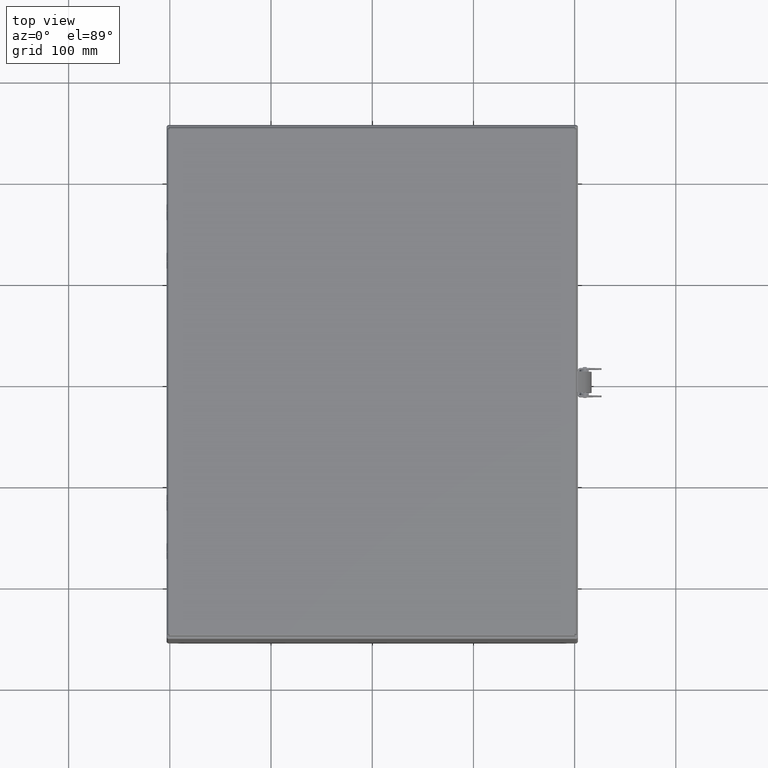
[diagram: clean part render]
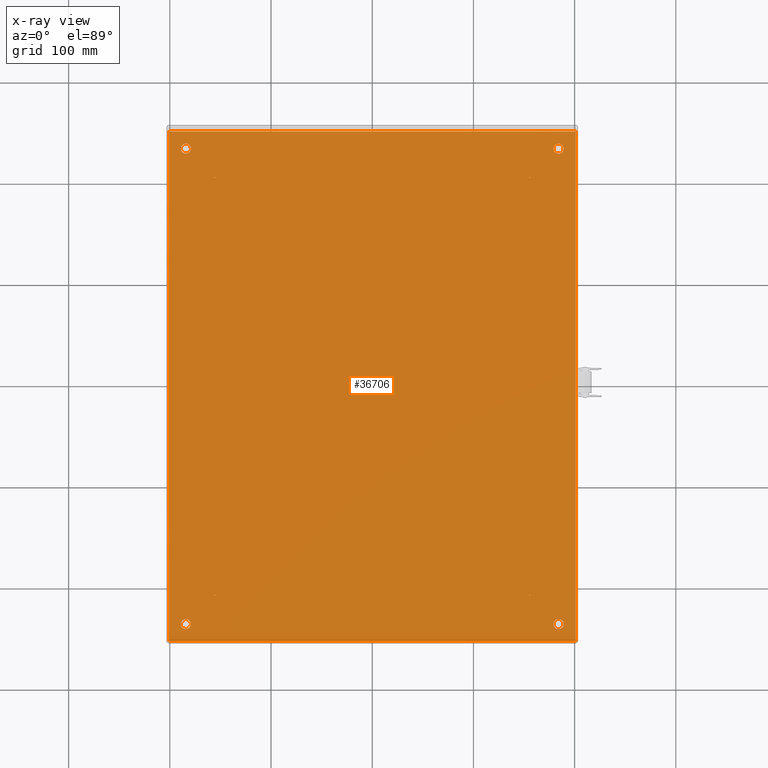
[diagram: x-ray — body ghosted, one internal face saturated and labeled with its STEP entity id]
A machine part, top view, then the same camera in x-ray: the body is ghosted and one INTERNAL B-rep face — a face not visible from any outside direction — is saturated and labeled: STEP entity #36706.
In plain terms, the highlighted planar face has unit normal (0, 0, 1).
Its self-contained STEP definition (entity closure, byte-faithful):
#676=FACE_BOUND('',#11079,.T.);
#677=FACE_BOUND('',#11080,.T.);
#678=FACE_BOUND('',#11081,.T.);
#679=FACE_BOUND('',#11082,.T.);
#680=FACE_BOUND('',#11083,.T.);
#681=FACE_BOUND('',#11084,.T.);
#682=FACE_BOUND('',#11085,.T.);
#683=FACE_BOUND('',#11086,.T.);
#3573=LINE('',#52361,#5770);
#3588=LINE('',#52415,#5785);
#3664=LINE('',#52718,#5861);
#3693=LINE('',#52799,#5890);
#5770=VECTOR('',#43138,0.393700787401575);
#5785=VECTOR('',#43199,0.393700787401575);
#5861=VECTOR('',#43541,0.393700787401575);
#5890=VECTOR('',#43658,0.393700787401575);
#8772=FACE_OUTER_BOUND('',#11078,.T.);
#11078=EDGE_LOOP('',(#24864,#24865,#24866,#24867));
#11079=EDGE_LOOP('',(#24868));
#11080=EDGE_LOOP('',(#24869));
#11081=EDGE_LOOP('',(#24870));
#11082=EDGE_LOOP('',(#24871));
#11083=EDGE_LOOP('',(#24872));
#11084=EDGE_LOOP('',(#24873));
#11085=EDGE_LOOP('',(#24874));
#11086=EDGE_LOOP('',(#24875));
#13365=CIRCLE('',#39606,0.195);
#13367=CIRCLE('',#39609,0.195);
#13369=CIRCLE('',#39612,0.195);
#13371=CIRCLE('',#39615,0.195);
#13485=CIRCLE('',#39849,0.015);
#13487=CIRCLE('',#39853,0.015);
#13489=CIRCLE('',#39857,0.015);
#13491=CIRCLE('',#39861,0.015);
#14860=VERTEX_POINT('',#51892);
#14862=VERTEX_POINT('',#51898);
#14864=VERTEX_POINT('',#51904);
#14866=VERTEX_POINT('',#51910);
#14909=VERTEX_POINT('',#52353);
#14911=VERTEX_POINT('',#52359);
#14925=VERTEX_POINT('',#52407);
#14927=VERTEX_POINT('',#52413);
#15022=VERTEX_POINT('',#52764);
#15024=VERTEX_POINT('',#52771);
#15026=VERTEX_POINT('',#52778);
#15028=VERTEX_POINT('',#52785);
#18490=EDGE_CURVE('',#14860,#14860,#13365,.T.);
#18493=EDGE_CURVE('',#14862,#14862,#13367,.T.);
#18496=EDGE_CURVE('',#14864,#14864,#13369,.T.);
#18499=EDGE_CURVE('',#14866,#14866,#13371,.T.);
#18570=EDGE_CURVE('',#14909,#14911,#3573,.T.);
#18597=EDGE_CURVE('',#14925,#14927,#3588,.T.);
#18750=EDGE_CURVE('',#14927,#14909,#3664,.T.);
#18773=EDGE_CURVE('',#15022,#15022,#13485,.T.);
#18776=EDGE_CURVE('',#15024,#15024,#13487,.T.);
#18779=EDGE_CURVE('',#15026,#15026,#13489,.T.);
#18782=EDGE_CURVE('',#15028,#15028,#13491,.T.);
#18787=EDGE_CURVE('',#14911,#14925,#3693,.T.);
#24864=ORIENTED_EDGE('',*,*,#18570,.T.);
#24865=ORIENTED_EDGE('',*,*,#18787,.T.);
#24866=ORIENTED_EDGE('',*,*,#18597,.T.);
#24867=ORIENTED_EDGE('',*,*,#18750,.T.);
#24868=ORIENTED_EDGE('',*,*,#18490,.T.);
#24869=ORIENTED_EDGE('',*,*,#18493,.T.);
#24870=ORIENTED_EDGE('',*,*,#18496,.T.);
#24871=ORIENTED_EDGE('',*,*,#18499,.T.);
#24872=ORIENTED_EDGE('',*,*,#18773,.T.);
#24873=ORIENTED_EDGE('',*,*,#18776,.T.);
#24874=ORIENTED_EDGE('',*,*,#18779,.T.);
#24875=ORIENTED_EDGE('',*,*,#18782,.T.);
#35945=PLANE('',#39869);
#36706=ADVANCED_FACE('',(#8772,#676,#677,#678,#679,#680,#681,#682,#683),
#35945,.T.);
#39606=AXIS2_PLACEMENT_3D('',#51893,#42977,#42978);
#39609=AXIS2_PLACEMENT_3D('',#51899,#42984,#42985);
#39612=AXIS2_PLACEMENT_3D('',#51905,#42991,#42992);
#39615=AXIS2_PLACEMENT_3D('',#51911,#42998,#42999);
#39849=AXIS2_PLACEMENT_3D('',#52765,#43610,#43611);
#39853=AXIS2_PLACEMENT_3D('',#52772,#43619,#43620);
#39857=AXIS2_PLACEMENT_3D('',#52779,#43628,#43629);
#39861=AXIS2_PLACEMENT_3D('',#52786,#43637,#43638);
#39869=AXIS2_PLACEMENT_3D('',#52798,#43656,#43657);
#42977=DIRECTION('center_axis',(0.,0.,-1.));
#42978=DIRECTION('ref_axis',(1.,0.,0.));
#42984=DIRECTION('center_axis',(0.,0.,-1.));
#42985=DIRECTION('ref_axis',(1.,0.,0.));
#42991=DIRECTION('center_axis',(0.,0.,-1.));
#42992=DIRECTION('ref_axis',(1.,0.,0.));
#42998=DIRECTION('center_axis',(0.,0.,-1.));
#42999=DIRECTION('ref_axis',(1.,0.,0.));
#43138=DIRECTION('',(0.,1.,0.));
#43199=DIRECTION('',(0.,-1.,0.));
#43541=DIRECTION('',(1.,0.,0.));
#43610=DIRECTION('center_axis',(0.,0.,-1.));
#43611=DIRECTION('ref_axis',(-1.,0.,0.));
#43619=DIRECTION('center_axis',(0.,0.,-1.));
#43620=DIRECTION('ref_axis',(-1.,0.,0.));
#43628=DIRECTION('center_axis',(0.,0.,-1.));
#43629=DIRECTION('ref_axis',(-1.,0.,0.));
#43637=DIRECTION('center_axis',(0.,0.,-1.));
#43638=DIRECTION('ref_axis',(-1.,0.,0.));
#43656=DIRECTION('center_axis',(0.,0.,1.));
#43657=DIRECTION('ref_axis',(1.,0.,0.));
#43658=DIRECTION('',(-1.,0.,0.));
#51892=CARTESIAN_POINT('',(7.055,-9.25,0.053));
#51893=CARTESIAN_POINT('Origin',(7.25,-9.25,0.053));
#51898=CARTESIAN_POINT('',(7.055,9.25,0.053));
#51899=CARTESIAN_POINT('Origin',(7.25,9.25,0.053));
#51904=CARTESIAN_POINT('',(-7.445,9.25,0.053));
#51905=CARTESIAN_POINT('Origin',(-7.25,9.25,0.053));
#51910=CARTESIAN_POINT('',(-7.445,-9.25,0.053));
#51911=CARTESIAN_POINT('Origin',(-7.25,-9.25,0.053));
#52353=CARTESIAN_POINT('',(7.916,-9.916,0.053));
#52359=CARTESIAN_POINT('',(7.916,9.916,0.053));
#52361=CARTESIAN_POINT('',(7.916,-5.,0.053));
#52407=CARTESIAN_POINT('',(-7.916,9.916,0.053));
#52413=CARTESIAN_POINT('',(-7.916,-9.916,0.053));
#52415=CARTESIAN_POINT('',(-7.916,5.,0.053));
#52718=CARTESIAN_POINT('',(-3.958,-9.916,0.053));
#52764=CARTESIAN_POINT('',(-6.11,-8.125,0.053));
#52765=CARTESIAN_POINT('Origin',(-6.125,-8.125,0.053));
#52771=CARTESIAN_POINT('',(-6.11,8.125,0.053));
#52772=CARTESIAN_POINT('Origin',(-6.125,8.125,0.053));
#52778=CARTESIAN_POINT('',(6.14,8.125,0.053));
#52779=CARTESIAN_POINT('Origin',(6.125,8.125,0.053));
#52785=CARTESIAN_POINT('',(6.14,-8.125,0.053));
#52786=CARTESIAN_POINT('Origin',(6.125,-8.125,0.053));
#52798=CARTESIAN_POINT('Origin',(0.,-1.41283451793546E-16,0.053));
#52799=CARTESIAN_POINT('',(3.958,9.916,0.053));